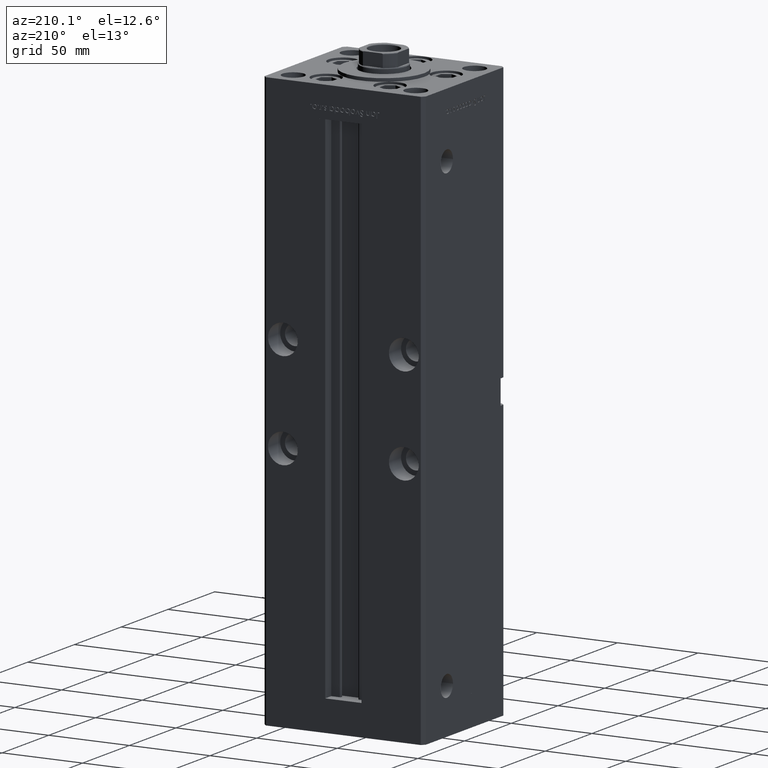
[diagram: clean part render]
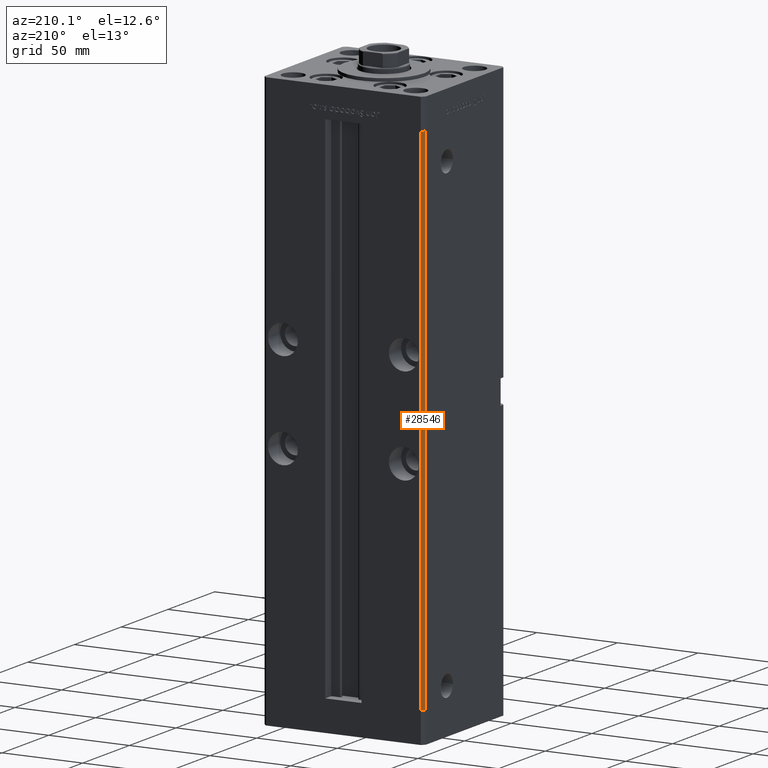
[diagram: same view with one face highlighted and labeled with its STEP entity id]
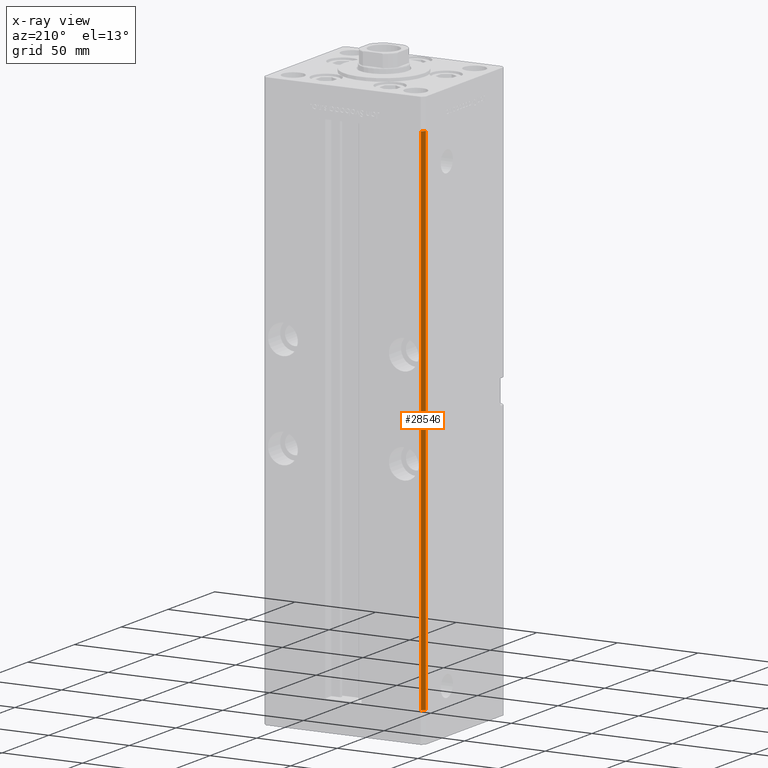
[diagram: x-ray of the same camera — body ghosted, the highlighted face saturated]
A machine part, auxiliary view. The second image highlights one B-rep face of the part: STEP entity #28546.
The next image is the same camera in x-ray: the body ghosted, the highlighted face saturated — about 0% of this face is hidden behind the body in this view.
In plain terms, the highlighted planar face has unit normal (0.7071, -0.7071, 0).
Its self-contained STEP definition (entity closure, byte-faithful):
#1081 = ORIENTED_EDGE ( 'NONE', *, *, #7871, .T. ) ;
#1569 = VERTEX_POINT ( 'NONE', #51948 ) ;
#2497 = VECTOR ( 'NONE', #26167, 1000.000000000000000 ) ;
#5695 = CARTESIAN_POINT ( 'NONE',  ( -50.00000000000001421, 41.49999999999999289, 318.5000000000000000 ) ) ;
#7871 = EDGE_CURVE ( 'NONE', #1569, #47336, #21275, .T. ) ;
#9507 = EDGE_CURVE ( 'NONE', #24054, #47336, #47353, .T. ) ;
#9985 = FACE_OUTER_BOUND ( 'NONE', #15129, .T. ) ;
#14351 = VECTOR ( 'NONE', #25055, 1000.000000000000000 ) ;
#15129 = EDGE_LOOP ( 'NONE', ( #1081, #34052, #46040, #28655 ) ) ;
#20998 = CARTESIAN_POINT ( 'NONE',  ( -50.00000000000001421, 41.49999999999999289, 0.000000000000000000 ) ) ;
#21275 = LINE ( 'NONE', #25297, #49668 ) ;
#21847 = VERTEX_POINT ( 'NONE', #35400 ) ;
#23136 = DIRECTION ( 'NONE',  ( 0.7071067811865463515, -0.7071067811865487940, 0.000000000000000000 ) ) ;
#24054 = VERTEX_POINT ( 'NONE', #5695 ) ;
#25055 = DIRECTION ( 'NONE',  ( -0.000000000000000000, -0.000000000000000000, -1.000000000000000000 ) ) ;
#25297 = CARTESIAN_POINT ( 'NONE',  ( -48.00000000000000711, 43.50000000000000000, 0.000000000000000000 ) ) ;
#25530 = EDGE_CURVE ( 'NONE', #21847, #1569, #33913, .T. ) ;
#26167 = DIRECTION ( 'NONE',  ( -0.000000000000000000, -0.000000000000000000, -1.000000000000000000 ) ) ;
#26431 = CARTESIAN_POINT ( 'NONE',  ( -50.00000000000001421, 41.49999999999999289, 318.5000000000000000 ) ) ;
#26885 = CARTESIAN_POINT ( 'NONE',  ( -48.00000000000000711, 43.50000000000000000, 318.5000000000000000 ) ) ;
#28546 = ADVANCED_FACE ( 'NONE', ( #9985 ), #39488, .F. ) ;
#28655 = ORIENTED_EDGE ( 'NONE', *, *, #25530, .T. ) ;
#29880 = AXIS2_PLACEMENT_3D ( 'NONE', #26885, #23136, #34166 ) ;
#33913 = LINE ( 'NONE', #45433, #14351 ) ;
#34052 = ORIENTED_EDGE ( 'NONE', *, *, #9507, .F. ) ;
#34166 = DIRECTION ( 'NONE',  ( 0.7071067811865487940, 0.7071067811865463515, 0.000000000000000000 ) ) ;
#35142 = CARTESIAN_POINT ( 'NONE',  ( -48.00000000000000711, 43.50000000000000000, 318.5000000000000000 ) ) ;
#35400 = CARTESIAN_POINT ( 'NONE',  ( -48.00000000000000711, 43.50000000000000000, 318.5000000000000000 ) ) ;
#39488 = PLANE ( 'NONE',  #29880 ) ;
#40590 = DIRECTION ( 'NONE',  ( -0.7071067811865487940, -0.7071067811865463515, 0.000000000000000000 ) ) ;
#42124 = EDGE_CURVE ( 'NONE', #21847, #24054, #47222, .T. ) ;
#42133 = VECTOR ( 'NONE', #43456, 1000.000000000000000 ) ;
#43456 = DIRECTION ( 'NONE',  ( -0.7071067811865487940, -0.7071067811865463515, 0.000000000000000000 ) ) ;
#45433 = CARTESIAN_POINT ( 'NONE',  ( -48.00000000000000711, 43.50000000000000000, 318.5000000000000000 ) ) ;
#46040 = ORIENTED_EDGE ( 'NONE', *, *, #42124, .F. ) ;
#47222 = LINE ( 'NONE', #35142, #42133 ) ;
#47336 = VERTEX_POINT ( 'NONE', #20998 ) ;
#47353 = LINE ( 'NONE', #26431, #2497 ) ;
#49668 = VECTOR ( 'NONE', #40590, 1000.000000000000000 ) ;
#51948 = CARTESIAN_POINT ( 'NONE',  ( -48.00000000000000711, 43.50000000000000000, 0.000000000000000000 ) ) ;